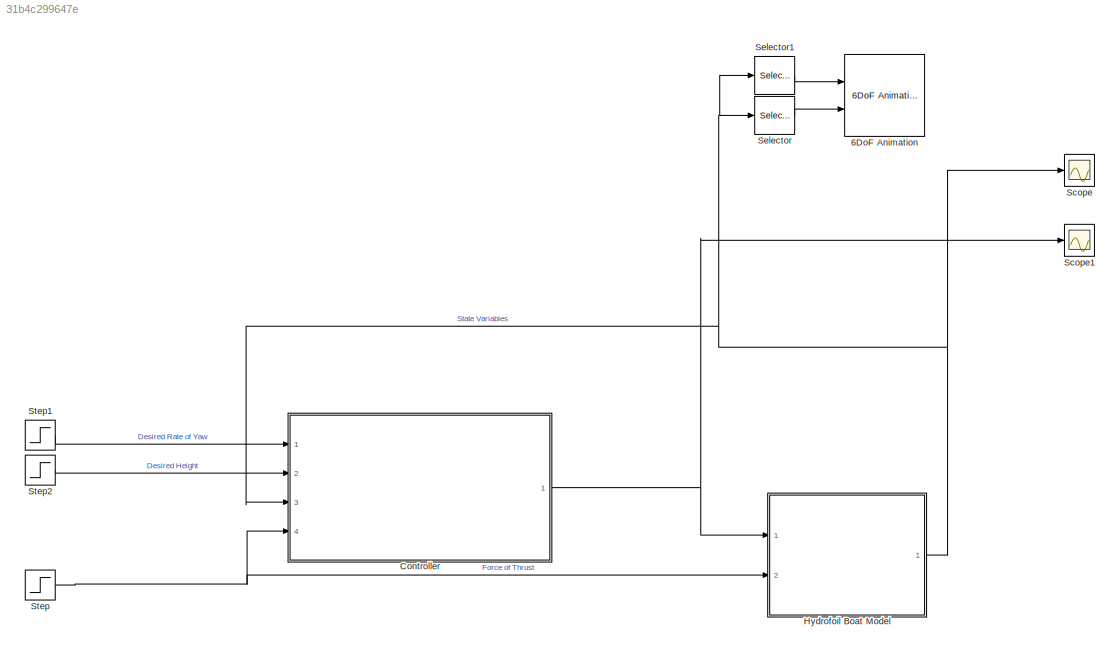
MODEL slx_31b4c299647e
KIND model
CONFIG AbsTol = auto
CONFIG EnableMultiTasking = off
CONFIG FixedStep = 0.05
CONFIG MaxStep = 0.1
CONFIG MinStep = auto
CONFIG RelTol = 1e-3
CONFIG SampleTimeConstraint = Unconstrained
CONFIG Solver = VariableStepAuto
CONFIG SolverName = VariableStepAuto
CONFIG StartTime = 0.0
CONFIG StopTime = 1
BLOCK [Reference] 6DoF Animation  REF=aerolibanim/6DoF Animation
  Ports = [2]
  SourceBlock = aerolibanim/6DoF Animation
  SourceProductBaseCode = AE
  SourceProductName = Aerospace Blockset
  SourceType = 6DoF_Animation
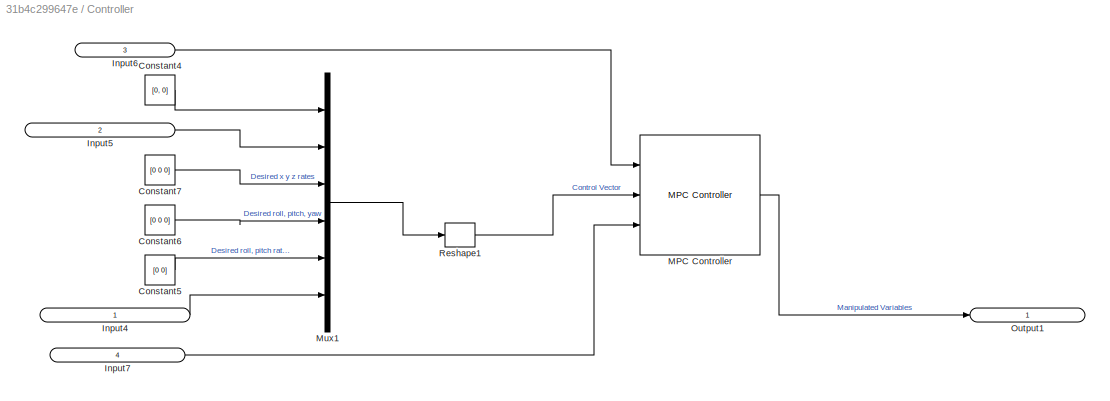
BLOCK [SubSystem] Controller
  Ports = [4, 1]
  RequestExecContextInheritance = off
BLOCK [Constant] Controller/Constant4
  Value = [0, 0]
BLOCK [Constant] Controller/Constant5
  Value = [0 0]
BLOCK [Constant] Controller/Constant6
  Value = [0 0 0]
BLOCK [Constant] Controller/Constant7
  Value = [0 0 0]
BLOCK [Inport] Controller/Input4
  IconDisplay = Signal name
BLOCK [Inport] Controller/Input5
  IconDisplay = Signal name
  Port = 2
BLOCK [Inport] Controller/Input6
  IconDisplay = Signal name
  Port = 3
BLOCK [Inport] Controller/Input7
  IconDisplay = Signal name
  Port = 4
BLOCK [Reference] Controller/MPC Controller  REF=mpclib/MPC Controller  (lib defined in mdl_ae329e0e0455)
  Ports = [3, 1]
  SCDEnableBlockLinearizationSpecification = on
  SourceBlock = mpclib/MPC Controller
  SourceProductBaseCode = MP
  SourceProductName = Model Predictive Control Toolbox
  SourceType = MPC
BLOCK [Mux] Controller/Mux1
  DisplayOption = bar
  Inputs = 6
  Ports = [6, 1]
BLOCK [Outport] Controller/Output1
  IconDisplay = Signal name
BLOCK [Reshape] Controller/Reshape1
  OutputDimensionality = Row vector (2-D)
  Ports = [1, 1]
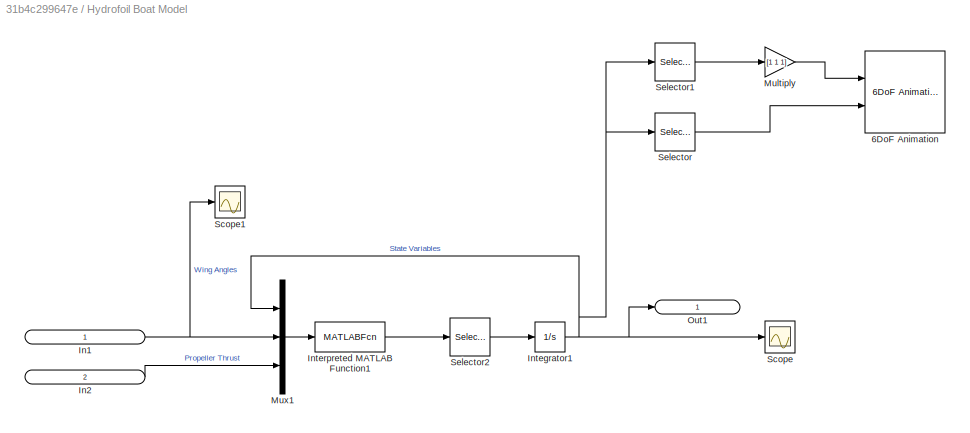
BLOCK [SubSystem] Hydrofoil Boat Model
  Ports = [2, 1]
  RequestExecContextInheritance = off
BLOCK [Reference] Hydrofoil Boat Model/6DoF Animation  REF=aerolibanim/6DoF Animation
  Ports = [2]
  SourceBlock = aerolibanim/6DoF Animation
  SourceProductBaseCode = AE
  SourceProductName = Aerospace Blockset
  SourceType = 6DoF_Animation
BLOCK [Inport] Hydrofoil Boat Model/In1
  IconDisplay = Signal name
BLOCK [Inport] Hydrofoil Boat Model/In2
  IconDisplay = Signal name
  Port = 2
BLOCK [Integrator] Hydrofoil Boat Model/Integrator1
  InitialCondition = x0
  Ports = [1, 1]
BLOCK [MATLABFcn] Hydrofoil Boat Model/Interpreted MATLAB Function1
  MATLABFcn = scalemodelstatefunction(u(1:12),u(13:16),u(17))
  OutputDimensions = 12
  Ports = [1, 1]
BLOCK [Gain] Hydrofoil Boat Model/Multiply
  Gain = [1 1 1]
  OutDataTypeStr = Inherit: Inherit via internal rule
  ParamDataTypeStr = Inherit: Inherit via internal rule
  SaturateOnIntegerOverflow = off
BLOCK [Mux] Hydrofoil Boat Model/Mux1
  DisplayOption = bar
  Inputs = 3
  Ports = [3, 1]
BLOCK [Outport] Hydrofoil Boat Model/Out1
  IconDisplay = Signal name
BLOCK [Scope] Hydrofoil Boat Model/Scope
  Floating = off
  NumInputPorts = 1
  Ports = [1]
  ScopeSpecificationString = Simulink.scopes.TimeScopeBlockCfg('CurrentConfiguration', extmgr.ConfigurationSet(extmgr.Configuration('Core','General UI',true),extmgr.Configuration('Core','Source UI',true),extmgr.Configuration('Sources','WiredSimulink',true,'DataLoggingVariableName','ScopeData2'),extmgr.Configuration('Visuals','Time Domain',true,'SerializedDisplays',{struct('MinYLimReal','-1.21951','MaxYLimReal','0.66263','YLab...<+2069ch>
BLOCK [Scope] Hydrofoil Boat Model/Scope1
  Floating = off
  NumInputPorts = 1
  Ports = [1]
  ScopeSpecificationString = Simulink.scopes.TimeScopeBlockCfg('CurrentConfiguration', extmgr.ConfigurationSet(extmgr.Configuration('Core','General UI',true),extmgr.Configuration('Core','Source UI',true),extmgr.Configuration('Sources','WiredSimulink',true,'DataLoggingVariableName','ScopeData1'),extmgr.Configuration('Visuals','Time Domain',true,'SerializedDisplays',{struct('MinYLimReal','-262.69706','MaxYLimReal','427.70735','...<+1434ch>
BLOCK [Selector] Hydrofoil Boat Model/Selector
  IndexOptions = Index vector (dialog)
  Indices = [8 7 9]
  InputPortWidth = 12
  OutputSizes = 1
  Ports = [1, 1]
BLOCK [Selector] Hydrofoil Boat Model/Selector1
  IndexOptions = Index vector (dialog)
  Indices = [1 2 3]
  InputPortWidth = 12
  OutputSizes = 1
  Ports = [1, 1]
BLOCK [Selector] Hydrofoil Boat Model/Selector2
  IndexOptions = Index vector (dialog)
  Indices = [1 2 3 4 5 6 7 8 9 10 11 12]
  InputPortWidth = 12
  OutputSizes = 1
  Ports = [1, 1]
BLOCK [Scope] Scope
  Floating = off
  NumInputPorts = 1
  Ports = [1]
  ScopeSpecificationString = Simulink.scopes.TimeScopeBlockCfg('CurrentConfiguration', extmgr.ConfigurationSet(extmgr.Configuration('Core','General UI',true),extmgr.Configuration('Core','Source UI',true),extmgr.Configuration('Sources','WiredSimulink',true),extmgr.Configuration('Visuals','Time Domain',true,'SerializedDisplays',{struct('MinYLimReal','-109.51502','MaxYLimReal','94.74796','YLabelReal','','MinYLimMag',' 0.00000','...<+1953ch>
BLOCK [Scope] Scope1
  Floating = off
  NumInputPorts = 1
  Ports = [1]
  ScopeSpecificationString = Simulink.scopes.TimeScopeBlockCfg('CurrentConfiguration', extmgr.ConfigurationSet(extmgr.Configuration('Core','General UI',true),extmgr.Configuration('Core','Source UI',true),extmgr.Configuration('Sources','WiredSimulink',true,'DataLoggingVariableName','ScopeData1'),extmgr.Configuration('Visuals','Time Domain',true,'SerializedDisplays',{struct('MinYLimReal','-0.4899','MaxYLimReal','1.00132','YLabe...<+1603ch>
BLOCK [Selector] Selector
  IndexOptions = Index vector (dialog)
  Indices = [7 8 9]
  InputPortWidth = 12
  OutputSizes = 1
  Ports = [1, 1]
BLOCK [Selector] Selector1
  IndexOptions = Index vector (dialog)
  Indices = [1 2 3]
  InputPortWidth = 12
  OutputSizes = 1
  Ports = [1, 1]
BLOCK [Step] Step
  After = 100
  SampleTime = 0
  Time = 0
BLOCK [Step] Step1
  After = 0
  SampleTime = 0
  Time = 0
BLOCK [Step] Step2
  After = 0
  SampleTime = 0
  Time = 0
LINE Controller/Constant4:1 -> Controller/Mux1:1
LINE Controller/Constant5:1 -> Controller/Mux1:5
LINE Controller/Constant6:1 -> Controller/Mux1:4
LINE Controller/Constant7:1 -> Controller/Mux1:3
LINE Controller/Input4:1 -> Controller/Mux1:6
LINE Controller/Input5:1 -> Controller/Mux1:2
LINE Controller/Input6:1 -> Controller/MPC Controller:1
LINE Controller/Input7:1 -> Controller/MPC Controller:3
LINE Controller/MPC Controller:1 -> Controller/Output1:1
LINE Controller/Mux1:1 -> Controller/Reshape1:1
LINE Controller/Reshape1:1 -> Controller/MPC Controller:2
NET Controller:1 -> Hydrofoil Boat Model:1, Scope1:1
NET Hydrofoil Boat Model/In1:1 -> Hydrofoil Boat Model/Mux1:2, Hydrofoil Boat Model/Scope1:1
LINE Hydrofoil Boat Model/In2:1 -> Hydrofoil Boat Model/Mux1:3
NET Hydrofoil Boat Model/Integrator1:1 -> Hydrofoil Boat Model/Mux1:1, Hydrofoil Boat Model/Out1:1, Hydrofoil Boat Model/Scope:1, Hydrofoil Boat Model/Selector1:1, Hydrofoil Boat Model/Selector:1
LINE Hydrofoil Boat Model/Interpreted MATLAB Function1:1 -> Hydrofoil Boat Model/Selector2:1
LINE Hydrofoil Boat Model/Multiply:1 -> Hydrofoil Boat Model/6DoF Animation:1
LINE Hydrofoil Boat Model/Mux1:1 -> Hydrofoil Boat Model/Interpreted MATLAB Function1:1
LINE Hydrofoil Boat Model/Selector1:1 -> Hydrofoil Boat Model/Multiply:1
LINE Hydrofoil Boat Model/Selector2:1 -> Hydrofoil Boat Model/Integrator1:1
LINE Hydrofoil Boat Model/Selector:1 -> Hydrofoil Boat Model/6DoF Animation:2
NET Hydrofoil Boat Model:1 -> Controller:3, Scope:1, Selector1:1, Selector:1
LINE Selector1:1 -> 6DoF Animation:1
LINE Selector:1 -> 6DoF Animation:2
LINE Step1:1 -> Controller:1
LINE Step2:1 -> Controller:2
NET Step:1 -> Controller:4, Hydrofoil Boat Model:2
note: NET lines group one-source signal fan-out (src -> all destinations, sorted); 1:1 wires keep LINE
